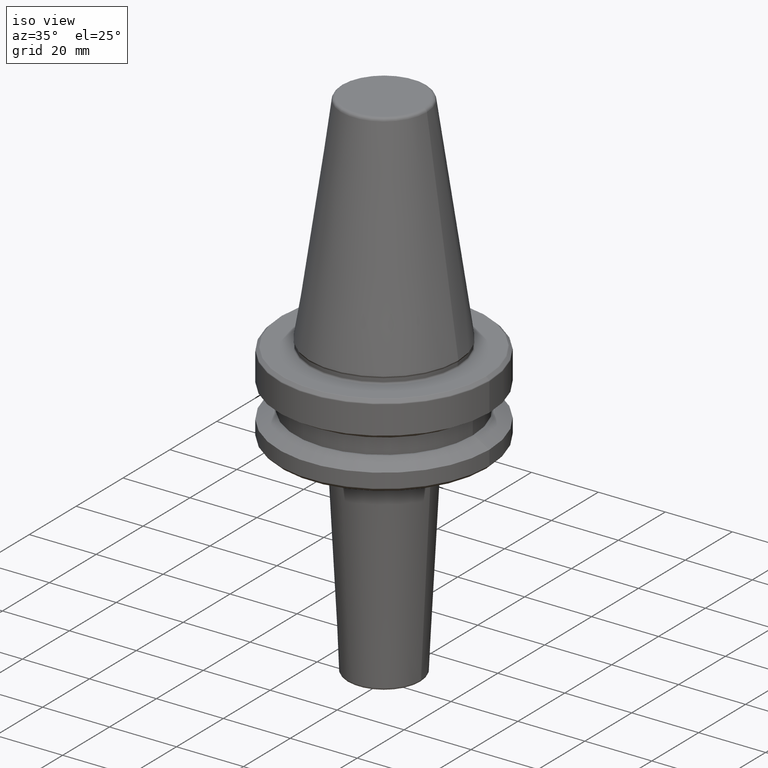
[diagram: clean part render]
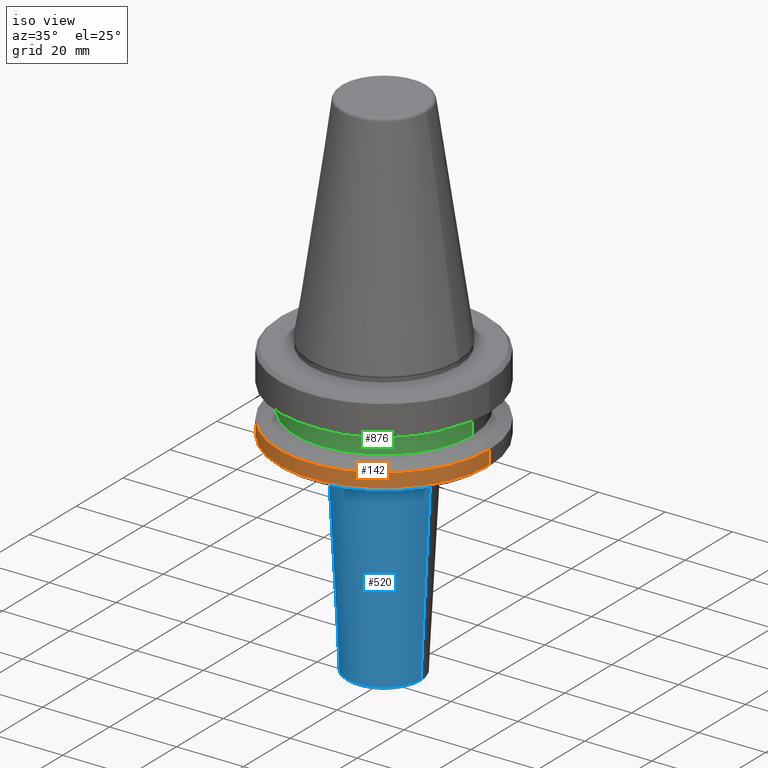
[diagram: same view with three faces highlighted in distinct colors, each labeled with its STEP entity id]
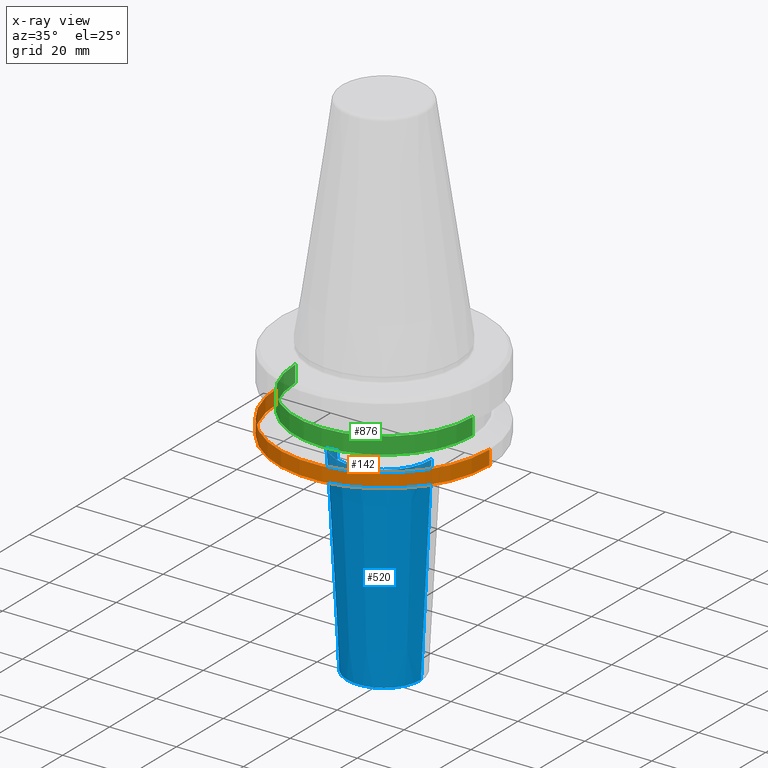
[diagram: x-ray of the same camera — body ghosted, the three highlighted faces saturated]
A machine part, iso view with three faces highlighted in distinct colors.
The next image is the same camera in x-ray (body ghosted, the three faces saturated) — at least one of them is partly hidden behind the body in this view.
Their STEP definitions:

[orange] entity #142 — the highlighted cylindrical surface (partial cylindrical patch) has radius 31.5 mm, axis along (-0, -0, -1).
#49 = CYLINDRICAL_SURFACE ( 'NONE', #615, 31.50000000000000000 ) ;
#83 = EDGE_CURVE ( 'NONE', #476, #357, #617, .T. ) ;
#97 = DIRECTION ( 'NONE',  ( -0.0000000000000000000, -0.0000000000000000000, -1.000000000000000000 ) ) ;
#113 = CARTESIAN_POINT ( 'NONE',  ( -31.50000000000000000, 0.0000000000000000000, -25.83431457505076200 ) ) ;
#122 = DIRECTION ( 'NONE',  ( -0.0000000000000000000, -0.0000000000000000000, -1.000000000000000000 ) ) ;
#142 = ADVANCED_FACE ( 'NONE', ( #940 ), #49, .T. ) ;
#191 = EDGE_CURVE ( 'NONE', #451, #476, #577, .T. ) ;
#202 = ORIENTED_EDGE ( 'NONE', *, *, #655, .F. ) ;
#211 = CARTESIAN_POINT ( 'NONE',  ( -31.50000000000000700, 0.0000000000000000000, -21.59985333118215700 ) ) ;
#221 = VERTEX_POINT ( 'NONE', #1004 ) ;
#335 = VECTOR ( 'NONE', #122, 1000.000000000000000 ) ;
#336 = CIRCLE ( 'NONE', #1045, 31.50000000000000000 ) ;
#342 = DIRECTION ( 'NONE',  ( -0.0000000000000000000, -0.0000000000000000000, -1.000000000000000000 ) ) ;
#357 = VERTEX_POINT ( 'NONE', #113 ) ;
#376 = ORIENTED_EDGE ( 'NONE', *, *, #1041, .F. ) ;
#444 = ORIENTED_EDGE ( 'NONE', *, *, #83, .T. ) ;
#451 = VERTEX_POINT ( 'NONE', #604 ) ;
#461 = DIRECTION ( 'NONE',  ( -0.0000000000000000000, -0.0000000000000000000, -1.000000000000000000 ) ) ;
#476 = VERTEX_POINT ( 'NONE', #211 ) ;
#577 = CIRCLE ( 'NONE', #785, 31.50000000000000700 ) ;
#604 = CARTESIAN_POINT ( 'NONE',  ( 31.50000000000000700, 3.857637417314163500E-015, -21.59985333118215700 ) ) ;
#615 = AXIS2_PLACEMENT_3D ( 'NONE', #651, #461, #995 ) ;
#617 = LINE ( 'NONE', #864, #1025 ) ;
#651 = CARTESIAN_POINT ( 'NONE',  ( 0.0000000000000000000, 0.0000000000000000000, 0.0000000000000000000 ) ) ;
#655 = EDGE_CURVE ( 'NONE', #221, #357, #336, .T. ) ;
#687 = DIRECTION ( 'NONE',  ( -0.0000000000000000000, -0.0000000000000000000, -1.000000000000000000 ) ) ;
#738 = DIRECTION ( 'NONE',  ( -1.000000000000000000, 0.0000000000000000000, 0.0000000000000000000 ) ) ;
#785 = AXIS2_PLACEMENT_3D ( 'NONE', #961, #97, #738 ) ;
#816 = EDGE_LOOP ( 'NONE', ( #376, #1204, #444, #202 ) ) ;
#830 = LINE ( 'NONE', #1038, #335 ) ;
#864 = CARTESIAN_POINT ( 'NONE',  ( -31.50000000000000000, 0.0000000000000000000, 0.0000000000000000000 ) ) ;
#899 = CARTESIAN_POINT ( 'NONE',  ( 0.0000000000000000000, 0.0000000000000000000, -25.83431457505076200 ) ) ;
#940 = FACE_OUTER_BOUND ( 'NONE', #816, .T. ) ;
#961 = CARTESIAN_POINT ( 'NONE',  ( 0.0000000000000000000, 0.0000000000000000000, -21.59985333118215700 ) ) ;
#980 = DIRECTION ( 'NONE',  ( -1.000000000000000000, 0.0000000000000000000, 0.0000000000000000000 ) ) ;
#995 = DIRECTION ( 'NONE',  ( -1.000000000000000000, 0.0000000000000000000, 0.0000000000000000000 ) ) ;
#1004 = CARTESIAN_POINT ( 'NONE',  ( 31.50000000000000000, 3.857637417314161900E-015, -25.83431457505076200 ) ) ;
#1025 = VECTOR ( 'NONE', #687, 1000.000000000000000 ) ;
#1038 = CARTESIAN_POINT ( 'NONE',  ( 31.50000000000000000, 3.857637417314162700E-015, 0.0000000000000000000 ) ) ;
#1041 = EDGE_CURVE ( 'NONE', #451, #221, #830, .T. ) ;
#1045 = AXIS2_PLACEMENT_3D ( 'NONE', #899, #342, #980 ) ;
#1204 = ORIENTED_EDGE ( 'NONE', *, *, #191, .T. ) ;

[blue] entity #520 — the highlighted conical surface has half-angle 3 deg.
#7 = FACE_OUTER_BOUND ( 'NONE', #399, .T. ) ;
#13 = DIRECTION ( 'NONE',  ( 1.000000000000000000, 0.0000000000000000000, 0.0000000000000000000 ) ) ;
#89 = CIRCLE ( 'NONE', #1093, 14.20236015875221500 ) ;
#101 = CARTESIAN_POINT ( 'NONE',  ( -14.20236015875221500, 1.739287490875379600E-015, -28.89532808751410500 ) ) ;
#119 = AXIS2_PLACEMENT_3D ( 'NONE', #317, #226, #697 ) ;
#141 = VECTOR ( 'NONE', #755, 1000.000000000000100 ) ;
#200 = EDGE_CURVE ( 'NONE', #1141, #228, #278, .T. ) ;
#226 = DIRECTION ( 'NONE',  ( -0.0000000000000000000, -0.0000000000000000000, 1.000000000000000000 ) ) ;
#228 = VERTEX_POINT ( 'NONE', #473 ) ;
#251 = DIRECTION ( 'NONE',  ( 0.05233595624294388300, 0.0000000000000000000, 0.9986295347545739400 ) ) ;
#278 = CIRCLE ( 'NONE', #841, 11.03973197443175800 ) ;
#281 = CARTESIAN_POINT ( 'NONE',  ( -14.30169009483160300, 1.751451899703293000E-015, -27.00000000000000400 ) ) ;
#303 = LINE ( 'NONE', #809, #804 ) ;
#317 = CARTESIAN_POINT ( 'NONE',  ( 0.0000000000000000000, 0.0000000000000000000, -27.00000000000000400 ) ) ;
#322 = LINE ( 'NONE', #281, #141 ) ;
#341 = ORIENTED_EDGE ( 'NONE', *, *, #673, .T. ) ;
#370 = DIRECTION ( 'NONE',  ( -0.0000000000000000000, -0.0000000000000000000, -1.000000000000000000 ) ) ;
#399 = EDGE_LOOP ( 'NONE', ( #1156, #682, #341, #997 ) ) ;
#424 = CARTESIAN_POINT ( 'NONE',  ( 14.20236015875221500, 0.0000000000000000000, -28.89532808751410500 ) ) ;
#473 = CARTESIAN_POINT ( 'NONE',  ( 11.03973197443175500, 0.0000000000000000000, -89.24186876499439300 ) ) ;
#515 = CARTESIAN_POINT ( 'NONE',  ( -11.03973197443175500, 1.351977242593253800E-015, -89.24186876499439300 ) ) ;
#520 = ADVANCED_FACE ( 'NONE', ( #7 ), #891, .T. ) ;
#553 = VERTEX_POINT ( 'NONE', #424 ) ;
#567 = DIRECTION ( 'NONE',  ( -0.0000000000000000000, -0.0000000000000000000, 1.000000000000000000 ) ) ;
#673 = EDGE_CURVE ( 'NONE', #228, #553, #303, .T. ) ;
#682 = ORIENTED_EDGE ( 'NONE', *, *, #200, .T. ) ;
#697 = DIRECTION ( 'NONE',  ( 1.000000000000000000, 0.0000000000000000000, 0.0000000000000000000 ) ) ;
#755 = DIRECTION ( 'NONE',  ( -0.05233595624294388300, 6.409306129323716300E-018, 0.9986295347545739400 ) ) ;
#797 = VERTEX_POINT ( 'NONE', #101 ) ;
#804 = VECTOR ( 'NONE', #251, 1000.000000000000100 ) ;
#809 = CARTESIAN_POINT ( 'NONE',  ( 14.30169009483160300, 0.0000000000000000000, -27.00000000000000400 ) ) ;
#841 = AXIS2_PLACEMENT_3D ( 'NONE', #1114, #567, #13 ) ;
#883 = EDGE_CURVE ( 'NONE', #553, #797, #89, .T. ) ;
#891 = CONICAL_SURFACE ( 'NONE', #119, 14.30169009483160300, 0.05235987755982993200 ) ;
#892 = EDGE_CURVE ( 'NONE', #1141, #797, #322, .T. ) ;
#927 = CARTESIAN_POINT ( 'NONE',  ( 0.0000000000000000000, 0.0000000000000000000, -28.89532808751410500 ) ) ;
#997 = ORIENTED_EDGE ( 'NONE', *, *, #883, .T. ) ;
#1021 = DIRECTION ( 'NONE',  ( -1.000000000000000000, 0.0000000000000000000, 0.0000000000000000000 ) ) ;
#1093 = AXIS2_PLACEMENT_3D ( 'NONE', #927, #370, #1021 ) ;
#1114 = CARTESIAN_POINT ( 'NONE',  ( 0.0000000000000000000, 0.0000000000000000000, -89.24186876499439300 ) ) ;
#1141 = VERTEX_POINT ( 'NONE', #515 ) ;
#1156 = ORIENTED_EDGE ( 'NONE', *, *, #892, .F. ) ;

[green] entity #876 — the highlighted cylindrical surface (partial cylindrical patch) has radius 26.5 mm, axis along (-0, -0, -1).
#18 = CARTESIAN_POINT ( 'NONE',  ( 0.0000000000000000000, 0.0000000000000000000, -14.10000000000000000 ) ) ;
#24 = AXIS2_PLACEMENT_3D ( 'NONE', #366, #279, #752 ) ;
#108 = DIRECTION ( 'NONE',  ( -1.000000000000000000, 0.0000000000000000000, 0.0000000000000000000 ) ) ;
#112 = CYLINDRICAL_SURFACE ( 'NONE', #24, 26.50000000000000700 ) ;
#170 = CARTESIAN_POINT ( 'NONE',  ( 26.50000000000000700, 3.245314017740486900E-015, 0.0000000000000000000 ) ) ;
#195 = EDGE_CURVE ( 'NONE', #440, #547, #510, .T. ) ;
#196 = CIRCLE ( 'NONE', #1098, 26.50000000000000700 ) ;
#215 = CARTESIAN_POINT ( 'NONE',  ( 0.0000000000000000000, 0.0000000000000000000, -19.09999999999999800 ) ) ;
#259 = DIRECTION ( 'NONE',  ( -0.0000000000000000000, -0.0000000000000000000, -1.000000000000000000 ) ) ;
#265 = DIRECTION ( 'NONE',  ( -0.0000000000000000000, -0.0000000000000000000, -1.000000000000000000 ) ) ;
#266 = EDGE_CURVE ( 'NONE', #440, #417, #196, .T. ) ;
#268 = CARTESIAN_POINT ( 'NONE',  ( -26.50000000000000700, 0.0000000000000000000, -19.09999999999999800 ) ) ;
#279 = DIRECTION ( 'NONE',  ( -0.0000000000000000000, -0.0000000000000000000, -1.000000000000000000 ) ) ;
#309 = DIRECTION ( 'NONE',  ( -1.000000000000000000, 0.0000000000000000000, 0.0000000000000000000 ) ) ;
#366 = CARTESIAN_POINT ( 'NONE',  ( 0.0000000000000000000, 0.0000000000000000000, 0.0000000000000000000 ) ) ;
#373 = ORIENTED_EDGE ( 'NONE', *, *, #266, .T. ) ;
#417 = VERTEX_POINT ( 'NONE', #770 ) ;
#440 = VERTEX_POINT ( 'NONE', #942 ) ;
#482 = LINE ( 'NONE', #818, #508 ) ;
#507 = CIRCLE ( 'NONE', #822, 26.50000000000000700 ) ;
#508 = VECTOR ( 'NONE', #259, 1000.000000000000000 ) ;
#510 = LINE ( 'NONE', #170, #1030 ) ;
#547 = VERTEX_POINT ( 'NONE', #621 ) ;
#593 = ORIENTED_EDGE ( 'NONE', *, *, #195, .F. ) ;
#621 = CARTESIAN_POINT ( 'NONE',  ( 26.50000000000000700, 3.245314017740486900E-015, -19.09999999999999800 ) ) ;
#661 = DIRECTION ( 'NONE',  ( -0.0000000000000000000, -0.0000000000000000000, -1.000000000000000000 ) ) ;
#726 = EDGE_LOOP ( 'NONE', ( #593, #373, #808, #774 ) ) ;
#740 = EDGE_CURVE ( 'NONE', #417, #802, #482, .T. ) ;
#752 = DIRECTION ( 'NONE',  ( -1.000000000000000000, 0.0000000000000000000, 0.0000000000000000000 ) ) ;
#770 = CARTESIAN_POINT ( 'NONE',  ( -26.50000000000000700, 0.0000000000000000000, -14.10000000000000000 ) ) ;
#774 = ORIENTED_EDGE ( 'NONE', *, *, #1100, .F. ) ;
#802 = VERTEX_POINT ( 'NONE', #268 ) ;
#808 = ORIENTED_EDGE ( 'NONE', *, *, #740, .T. ) ;
#818 = CARTESIAN_POINT ( 'NONE',  ( -26.50000000000000700, 0.0000000000000000000, 0.0000000000000000000 ) ) ;
#822 = AXIS2_PLACEMENT_3D ( 'NONE', #215, #871, #309 ) ;
#871 = DIRECTION ( 'NONE',  ( -0.0000000000000000000, -0.0000000000000000000, -1.000000000000000000 ) ) ;
#876 = ADVANCED_FACE ( 'NONE', ( #1065 ), #112, .T. ) ;
#942 = CARTESIAN_POINT ( 'NONE',  ( 26.50000000000000700, 3.245314017740486900E-015, -14.10000000000000000 ) ) ;
#1030 = VECTOR ( 'NONE', #265, 1000.000000000000000 ) ;
#1065 = FACE_OUTER_BOUND ( 'NONE', #726, .T. ) ;
#1098 = AXIS2_PLACEMENT_3D ( 'NONE', #18, #661, #108 ) ;
#1100 = EDGE_CURVE ( 'NONE', #547, #802, #507, .T. ) ;